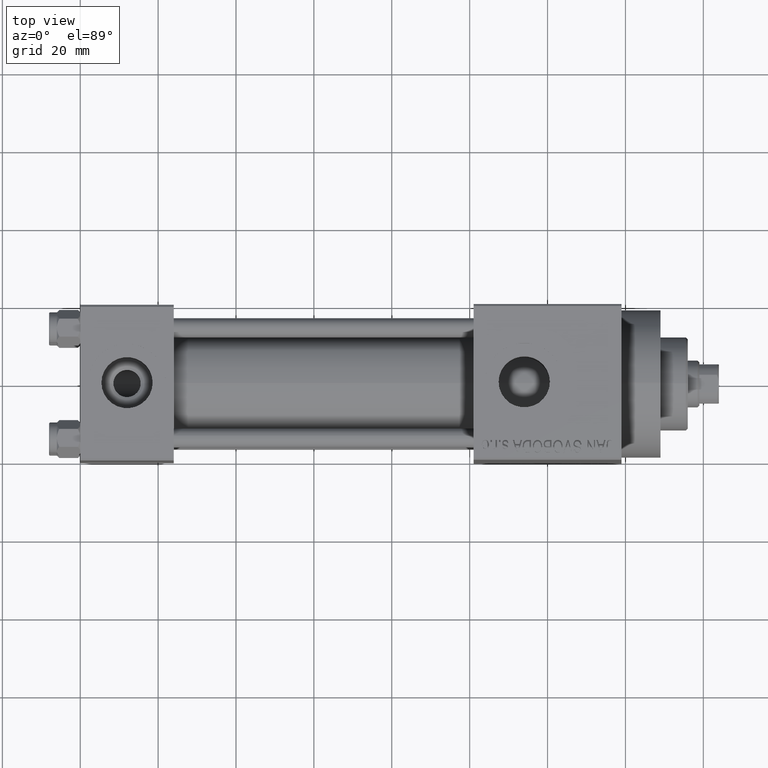
[diagram: clean part render]
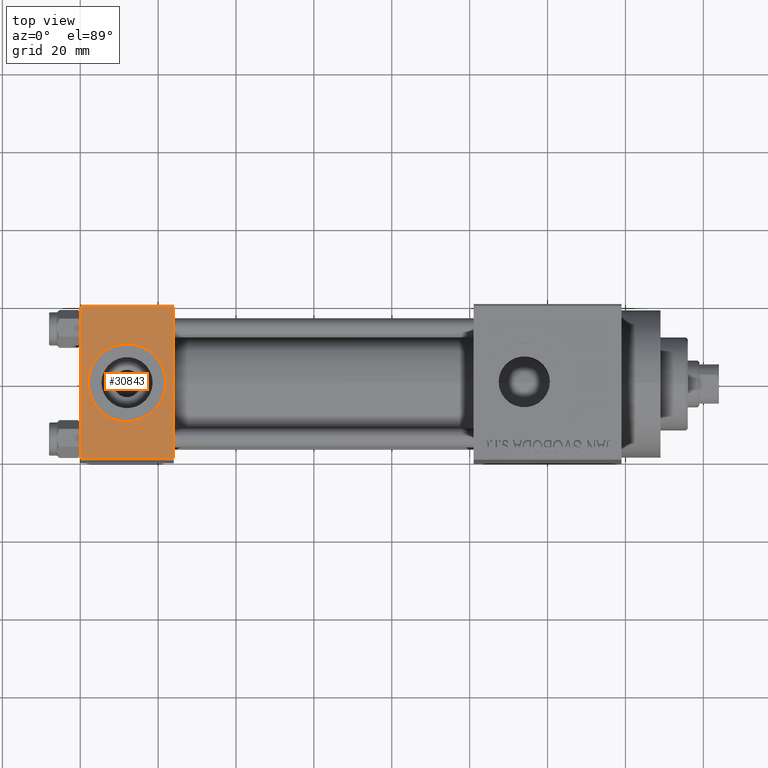
[diagram: same view with one face highlighted and labeled with its STEP entity id]
A machine part, top view. The second image highlights one B-rep face of the part: STEP entity #30843.
In plain terms, the highlighted planar face has unit normal (0, 0, -1).
Its self-contained STEP definition (entity closure, byte-faithful):
#887 = CARTESIAN_POINT ( 'NONE',  ( 0.000000000000000000, -19.49999999999999289, 19.99999999999998934 ) ) ;
#1004 = EDGE_CURVE ( 'NONE', #22844, #17753, #34779, .T. ) ;
#1630 = CARTESIAN_POINT ( 'NONE',  ( 24.00000000000000000, -19.49999999999999289, 19.99999999999998934 ) ) ;
#1662 = CARTESIAN_POINT ( 'NONE',  ( 12.00000000000000000, 1.540743955509788682E-30, 19.99999999999999645 ) ) ;
#3299 = VECTOR ( 'NONE', #32215, 1000.000000000000000 ) ;
#3515 = CARTESIAN_POINT ( 'NONE',  ( 24.00000000000000000, 19.50000000000000000, 20.00000000000000000 ) ) ;
#4985 = VECTOR ( 'NONE', #31609, 1000.000000000000000 ) ;
#5480 = VECTOR ( 'NONE', #30330, 1000.000000000000000 ) ;
#6199 = VERTEX_POINT ( 'NONE', #41456 ) ;
#6517 = CIRCLE ( 'NONE', #33150, 9.999999999999998224 ) ;
#9286 = CARTESIAN_POINT ( 'NONE',  ( 0.000000000000000000, 19.50000000000000000, 20.00000000000000000 ) ) ;
#10258 = ORIENTED_EDGE ( 'NONE', *, *, #37561, .T. ) ;
#10295 = CARTESIAN_POINT ( 'NONE',  ( 0.000000000000000000, 20.00000000000000000, 20.00000000000000000 ) ) ;
#10734 = FACE_OUTER_BOUND ( 'NONE', #46112, .T. ) ;
#10976 = CARTESIAN_POINT ( 'NONE',  ( 24.00000000000000000, 20.00000000000000000, 20.00000000000000000 ) ) ;
#11545 = EDGE_CURVE ( 'NONE', #22844, #22761, #30674, .T. ) ;
#12207 = AXIS2_PLACEMENT_3D ( 'NONE', #20622, #28475, #24907 ) ;
#12821 = ORIENTED_EDGE ( 'NONE', *, *, #47017, .F. ) ;
#13378 = ORIENTED_EDGE ( 'NONE', *, *, #1004, .T. ) ;
#14556 = PLANE ( 'NONE',  #30608 ) ;
#15023 = ORIENTED_EDGE ( 'NONE', *, *, #11545, .F. ) ;
#16456 = DIRECTION ( 'NONE',  ( -1.000000000000000000, 0.000000000000000000, 0.000000000000000000 ) ) ;
#17753 = VERTEX_POINT ( 'NONE', #31838 ) ;
#18359 = FACE_BOUND ( 'NONE', #33148, .T. ) ;
#20348 = DIRECTION ( 'NONE',  ( 0.000000000000000000, 2.602085213965210149E-16, -1.000000000000000000 ) ) ;
#20622 = CARTESIAN_POINT ( 'NONE',  ( 12.00000000000000000, 1.540743955509788682E-30, 19.99999999999999645 ) ) ;
#21028 = LINE ( 'NONE', #10295, #3299 ) ;
#22761 = VERTEX_POINT ( 'NONE', #1630 ) ;
#22844 = VERTEX_POINT ( 'NONE', #3515 ) ;
#24163 = VERTEX_POINT ( 'NONE', #27319 ) ;
#24907 = DIRECTION ( 'NONE',  ( 1.000000000000000000, 0.000000000000000000, 0.000000000000000000 ) ) ;
#26071 = VECTOR ( 'NONE', #16456, 1000.000000000000000 ) ;
#26437 = EDGE_CURVE ( 'NONE', #6199, #24163, #36567, .T. ) ;
#27319 = CARTESIAN_POINT ( 'NONE',  ( 2.000000000000003553, 1.224646799147354440E-15, 19.99999999999999645 ) ) ;
#27725 = DIRECTION ( 'NONE',  ( 0.000000000000000000, 1.000000000000000000, 2.602085213965210149E-16 ) ) ;
#28475 = DIRECTION ( 'NONE',  ( 0.000000000000000000, 0.000000000000000000, 1.000000000000000000 ) ) ;
#30330 = DIRECTION ( 'NONE',  ( 1.000000000000000000, 0.000000000000000000, 0.000000000000000000 ) ) ;
#30608 = AXIS2_PLACEMENT_3D ( 'NONE', #10976, #20348, #27725 ) ;
#30674 = LINE ( 'NONE', #45204, #4985 ) ;
#30720 = DIRECTION ( 'NONE',  ( 0.000000000000000000, 0.000000000000000000, 1.000000000000000000 ) ) ;
#30843 = ADVANCED_FACE ( 'NONE', ( #18359, #10734 ), #14556, .F. ) ;
#31295 = VERTEX_POINT ( 'NONE', #887 ) ;
#31609 = DIRECTION ( 'NONE',  ( 0.000000000000000000, -1.000000000000000000, -2.602085213965210149E-16 ) ) ;
#31838 = CARTESIAN_POINT ( 'NONE',  ( 0.000000000000000000, 19.50000000000000000, 20.00000000000000000 ) ) ;
#32215 = DIRECTION ( 'NONE',  ( 0.000000000000000000, -1.000000000000000000, -2.602085213965210149E-16 ) ) ;
#33148 = EDGE_LOOP ( 'NONE', ( #34451, #12821 ) ) ;
#33150 = AXIS2_PLACEMENT_3D ( 'NONE', #1662, #30720, #40735 ) ;
#34451 = ORIENTED_EDGE ( 'NONE', *, *, #26437, .F. ) ;
#34666 = EDGE_CURVE ( 'NONE', #31295, #22761, #38404, .T. ) ;
#34779 = LINE ( 'NONE', #9286, #26071 ) ;
#36567 = CIRCLE ( 'NONE', #12207, 9.999999999999998224 ) ;
#37561 = EDGE_CURVE ( 'NONE', #17753, #31295, #21028, .T. ) ;
#38404 = LINE ( 'NONE', #45792, #5480 ) ;
#40735 = DIRECTION ( 'NONE',  ( 1.000000000000000000, 0.000000000000000000, 0.000000000000000000 ) ) ;
#41456 = CARTESIAN_POINT ( 'NONE',  ( 22.00000000000000000, 1.540743955509788682E-30, 19.99999999999999645 ) ) ;
#45095 = ORIENTED_EDGE ( 'NONE', *, *, #34666, .T. ) ;
#45204 = CARTESIAN_POINT ( 'NONE',  ( 24.00000000000000000, 20.00000000000000000, 20.00000000000000000 ) ) ;
#45792 = CARTESIAN_POINT ( 'NONE',  ( 24.00000000000000000, -19.49999999999999289, 19.99999999999998934 ) ) ;
#46112 = EDGE_LOOP ( 'NONE', ( #10258, #45095, #15023, #13378 ) ) ;
#47017 = EDGE_CURVE ( 'NONE', #24163, #6199, #6517, .T. ) ;